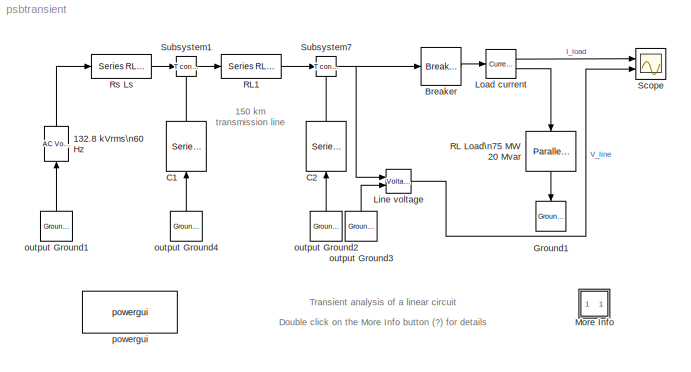
MODEL psbtransient
KIND model
BLOCK [Reference] 132.8 kVrms\n60 Hz  REF=powerlib2/Electrical\nSources/AC Voltage Source
  A = 230e3/sqrt(3)*sqrt(2)
  F = 60
  P = 90
  PSBOutputType = 1
  Ports = [1, 1]
  SourceBlock = powerlib2/Electrical\nSources/AC Voltage Source
  SourceType = AC Voltage Source
  Tag = PoWeRsYsTeMbLoCk
  mesure = None
  stime = 0
BLOCK [Reference] Breaker  REF=powerlib2/Elements/Breaker
  PSBOutputType = 1
  Ports = [1, 1]
  SourceBlock = powerlib2/Elements/Breaker
  SourceType = Breaker
  Tag = PoWeRsYsTeMbLoCk
  Ts = 0
  a = 0.01
  c = 1
  comext = off
  cs = 0
  mesure = None
  rs = inf
  times = [ 2/60  7/60 ]
BLOCK [Reference] C1  REF=powerlib2/Elements/Series RLC Branch
  PSBOutputType = 1
  Ports = [1, 1]
  SourceBlock = powerlib2/Elements/Series RLC Branch
  SourceType = Series RLC Branch
  Tag = PoWeRsYsTeMbLoCk
  a = 0
  b = 0
  c = 0.967e-06
  mesure = None
BLOCK [Reference] C2  REF=powerlib2/Elements/Series RLC Branch
  PSBOutputType = 1
  Ports = [1, 1]
  SourceBlock = powerlib2/Elements/Series RLC Branch
  SourceType = Series RLC Branch
  Tag = PoWeRsYsTeMbLoCk
  a = 0
  b = 0
  c = 0.967e-06
  mesure = None
BLOCK [Reference] Ground1  REF=powerlib2/Connectors/Ground (input)
  Ports = [1]
  SourceBlock = powerlib2/Connectors/Ground (input)
  SourceType = Ground
  Tag = PoWeRsYsTeMbLoCk
BLOCK [Reference] Line voltage  REF=powerlib2/Measurements/Voltage Measurement
  OutputType = Magnitude
  PSBOutputType = 0
  PSBequivalent = 0
  PhasorSimulation = off
  Ports = [2, 1]
  SourceBlock = powerlib2/Measurements/Voltage Measurement
  SourceType = Voltage Measurement
  Tag = PoWeRsYsTeMmEaSuReMeNt
BLOCK [Reference] Load current  REF=powerlib2/Measurements/Current Measurement
  OutputType = Magnitude
  PSBOutputType = 01
  PSBequivalent = 0
  PhasorSimulation = off
  Ports = [1, 2]
  SourceBlock = powerlib2/Measurements/Current Measurement
  SourceType = Current Measurement
  Tag = PoWeRsYsTeMmEaSuReMeNt
BLOCK [SubSystem] More Info
  MaskDisplay = disp('?')
  MaskIconFrame = on
  MaskIconOpaque = on
  MaskIconRotate = none
  MaskIconUnits = autoscale
  MinAlgLoopOccurrences = off
  Ports = []
  RTWSystemCode = Auto
  TreatAsAtomicUnit = off
BLOCK [Reference] RL Load\n75 MW 20 Mvar  REF=powerlib2/Elements/Parallel RLC Load
  PSBOutputType = 1
  Ports = [1, 1]
  SourceBlock = powerlib2/Elements/Parallel RLC Load
  SourceType = Parallel RLC Load
  Tag = PoWeRsYsTeMbLoCk
  a = 132.8e3
  b = 60
  c = 75e6
  d = 20e6
  e = 0
  mesure = None
BLOCK [Reference] RL1  REF=powerlib2/Elements/Series RLC Branch
  PSBOutputType = 1
  Ports = [1, 1]
  SourceBlock = powerlib2/Elements/Series RLC Branch
  SourceType = Series RLC Branch
  Tag = PoWeRsYsTeMbLoCk
  a = 5.2
  b = 138e-3
  c = inf
  mesure = None
BLOCK [Reference] Rs   Ls  REF=powerlib2/Elements/Series RLC Branch
  PSBOutputType = 1
  Ports = [1, 1]
  SourceBlock = powerlib2/Elements/Series RLC Branch
  SourceType = Series RLC Branch
  Tag = PoWeRsYsTeMbLoCk
  a = 2.645
  b = 70.2e-03
  c = inf
  mesure = None
BLOCK [Scope] Scope
  DataFormat = Array
  LimitDataPoints = off
  NumInputPorts = 2
  Ports = [2]
  TimeRange = 0.2
  YMax = 1000~400000
  YMin = -1000~-400000
BLOCK [Reference] Subsystem1  REF=powerlib2/Connectors/T connector
  PSBOutputType = 1
  Ports = [1, 1, 1]
  SourceBlock = powerlib2/Connectors/T connector
  SourceType = Bus Bar
  Tag = PoWeRsYsTeMbLoCk
BLOCK [Reference] Subsystem7  REF=powerlib2/Connectors/T connector
  PSBOutputType = 1
  Ports = [1, 1, 1]
  SourceBlock = powerlib2/Connectors/T connector
  SourceType = Bus Bar
  Tag = PoWeRsYsTeMbLoCk
BLOCK [Reference] output Ground1  REF=powerlib2/Connectors/Ground (output)
  PSBOutputType = 1
  Ports = [0, 1]
  SourceBlock = powerlib2/Connectors/Ground (output)
  SourceType = Ground
  Tag = PoWeRsYsTeMbLoCk
BLOCK [Reference] output Ground2  REF=powerlib2/Connectors/Ground (output)
  PSBOutputType = 1
  Ports = [0, 1]
  SourceBlock = powerlib2/Connectors/Ground (output)
  SourceType = Ground
  Tag = PoWeRsYsTeMbLoCk
BLOCK [Reference] output Ground3  REF=powerlib2/Connectors/Ground (output)
  PSBOutputType = 1
  Ports = [0, 1]
  SourceBlock = powerlib2/Connectors/Ground (output)
  SourceType = Ground
  Tag = PoWeRsYsTeMbLoCk
BLOCK [Reference] output Ground4  REF=powerlib2/Connectors/Ground (output)
  PSBOutputType = 1
  Ports = [0, 1]
  SourceBlock = powerlib2/Connectors/Ground (output)
  SourceType = Ground
  Tag = PoWeRsYsTeMbLoCk
BLOCK [Reference] powergui  REF=powerlib2/powergui
  DisplayStyle = off
  Frange = logspace(0,3,50)
  FreqAxis = off
  MaxFrequency = 1000
  Ports = []
  RmsSteady = 1
  SourceBlock = powerlib2/powergui
  SourceType = PSB option menu block
  StartTime = 0.0
  Ts = 0
  Xlog = off
  Ylog = off
  ZoomFFT = on
  cycles = 1
  display = off
  echomessages = off
  frequency = 60
  frequencyindice = 1
  frequencyindicesteady = 1
  fundamental = 60
  methode = off
  save = off
  variable = ZData
ANNOTATION (root): 150 km\ntransmission line
ANNOTATION (root): Double click on the More Info button (?) for details
ANNOTATION (root): Transient analysis of a linear circuit\n
ANNOTATION More Info: 1. Simulation using a continuous solver (ode23tb)
ANNOTATION More Info: 2. Using the powergui to obtain steady-state phasors and set initial states
ANNOTATION More Info: 3. Discretizing your circuit and simulating at fixed steps
ANNOTATION More Info: 4. Using the phasor simulation method
ANNOTATION More Info: Circuit Description
ANNOTATION More Info: Demonstration
ANNOTATION More Info: H. Le-Huy (Universite Laval, Quebec) and G. Sybille (Hydro-Quebec)
ANNOTATION More Info: Open the Powergui block and select \"Steady State Voltage and Currents\" to measure the steady-state voltage and current phasors.\n \nUsing the Powergui select now \"Initial States Setting\" to obtain the initial state values (voltage across capacitors and current in inductances).\nNow, reset all the initial states to zero by clicking the \"to zero\" button and then \"Apply\" to confirm changes. R...<+154ch>
ANNOTATION More Info: Start the simulation and observe line voltage and load current transients during load switching and note that the simulation starts in steady-state.\nUse the zoom buttons of the oscilloscope to observe the transient voltage at breaker reclosing.
ANNOTATION More Info: The Powergui block can also be used to discretize your circuit and simulate it at fixed steps.\n\nOpen the Powergui . Select \"Discretize electrical model\" and specify a sample time of 50e-6 s. The state-space model will now be discretized\nusing trapezoidal fixed step integration. The precision of results is now imposed by the sample time. Restart the simulation and compare simultion results\nwi...<+134ch>
ANNOTATION More Info: This circuit is a simplified model of a 230 kV three-phase power system. Only one phase of the transmission system is represented.\nThe equivalent source is modeled by a voltage source (230 kV rms/sqrt(3) or 187.8 kV peak, 60 Hz) in series with its internal impedance (Rs Ls)\ncorresponding to a 3-phase 2000 MVA short circuit level and X/R = 10. (X = 230e3^2/2000e6 = 26.45 ohms or L = 0.0702 H, R =...<+641ch>
ANNOTATION More Info: This demonstration illustrates steady-state and transient simulation of a linear circuit and use of the Powergui block
ANNOTATION More Info: You will now use a third simulation technique. The \"phasor simulation\" method consists to replace the circuit state-space model by a set of algebraic\nequations evaluated at a fixed frequency and to replace sinusoidal voltage and current sources by phasors (complex numbers). This method allows a fast\ncomputation of voltage and current phasors at a selected frequency, disregarding fast transient...<+592ch>
LINE 132.8 kVrms\n60 Hz:1 -> Rs   Ls:1
LINE Breaker:1 -> Load current:1
LINE C1:1 -> Subsystem1:enable
LINE C2:1 -> Subsystem7:enable
LINE Line voltage:1 -> Scope:2
LINE Load current:1 -> Scope:1
LINE Load current:2 -> RL Load\n75 MW 20 Mvar:1
LINE RL Load\n75 MW 20 Mvar:1 -> Ground1:1
LINE RL1:1 -> Subsystem7:1
LINE Rs   Ls:1 -> Subsystem1:1
LINE Subsystem1:1 -> RL1:1
NET Subsystem7:1 -> Breaker:1, Line voltage:1
LINE output Ground1:1 -> 132.8 kVrms\n60 Hz:1
LINE output Ground2:1 -> C2:1
LINE output Ground3:1 -> Line voltage:2
LINE output Ground4:1 -> C1:1
note: NET lines group one-source signal fan-out (src -> all destinations, sorted); 1:1 wires keep LINE
